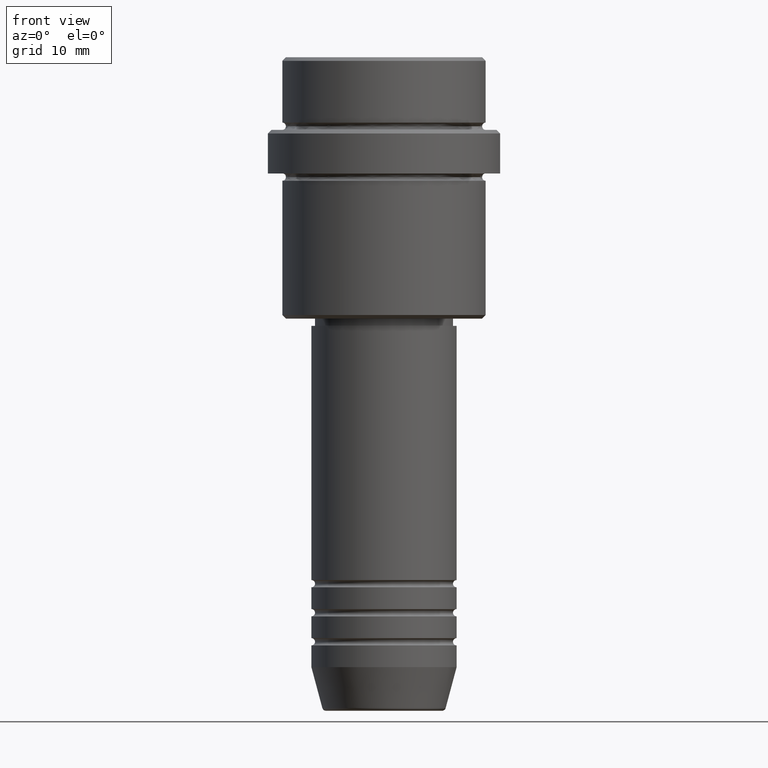
[diagram: clean part render]
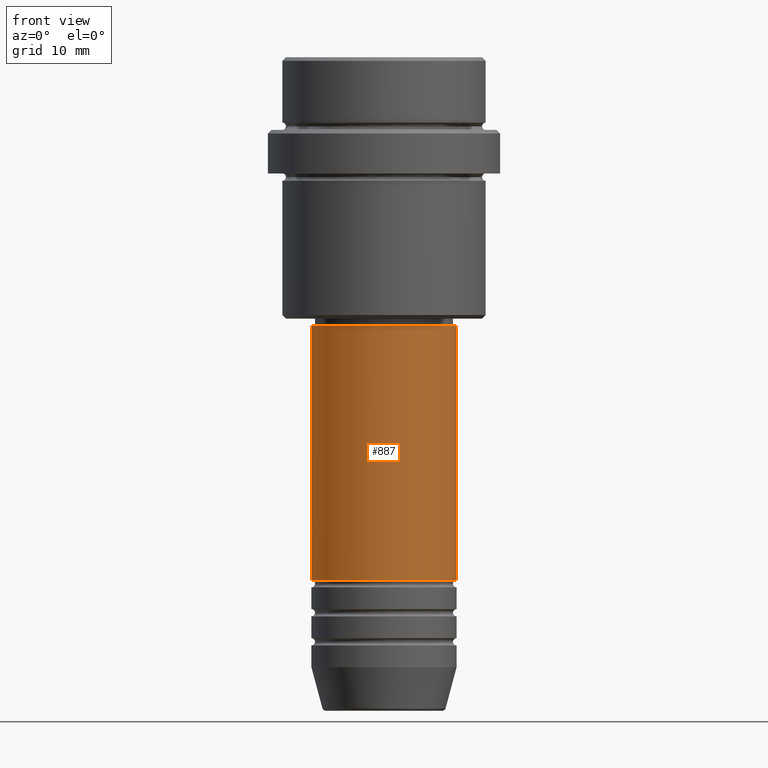
[diagram: same view with one face highlighted and labeled with its STEP entity id]
A machine part, front view. The second image highlights one B-rep face of the part: STEP entity #887.
In plain terms, the highlighted cylindrical surface (partial cylindrical patch) has radius 10 mm, axis along (-0, -0, 1).
Its self-contained STEP definition (entity closure, byte-faithful):
#62 = CARTESIAN_POINT ( 'NONE',  ( 10.00000000000000178, 0.000000000000000000, 0.000000000000000000 ) ) ;
#98 = AXIS2_PLACEMENT_3D ( 'NONE', #769, #1101, #774 ) ;
#111 = VERTEX_POINT ( 'NONE', #681 ) ;
#208 = EDGE_CURVE ( 'NONE', #111, #563, #984, .T. ) ;
#254 = EDGE_CURVE ( 'NONE', #563, #1037, #1038, .T. ) ;
#260 = DIRECTION ( 'NONE',  ( -0.000000000000000000, -0.000000000000000000, 1.000000000000000000 ) ) ;
#277 = CYLINDRICAL_SURFACE ( 'NONE', #1076, 10.00000000000000178 ) ;
#356 = VECTOR ( 'NONE', #566, 1000.000000000000000 ) ;
#362 = CARTESIAN_POINT ( 'NONE',  ( 0.000000000000000000, 0.000000000000000000, 0.000000000000000000 ) ) ;
#463 = CIRCLE ( 'NONE', #98, 10.00000000000000178 ) ;
#563 = VERTEX_POINT ( 'NONE', #1026 ) ;
#566 = DIRECTION ( 'NONE',  ( -0.000000000000000000, -0.000000000000000000, 1.000000000000000000 ) ) ;
#575 = DIRECTION ( 'NONE',  ( 1.000000000000000000, 0.000000000000000000, 0.000000000000000000 ) ) ;
#602 = FACE_OUTER_BOUND ( 'NONE', #840, .T. ) ;
#621 = ORIENTED_EDGE ( 'NONE', *, *, #208, .T. ) ;
#669 = AXIS2_PLACEMENT_3D ( 'NONE', #822, #1366, #575 ) ;
#681 = CARTESIAN_POINT ( 'NONE',  ( -10.00000000000000000, 1.224646799147353256E-15, -71.99999999999990052 ) ) ;
#713 = DIRECTION ( 'NONE',  ( -0.000000000000000000, -0.000000000000000000, 1.000000000000000000 ) ) ;
#769 = CARTESIAN_POINT ( 'NONE',  ( 0.000000000000000000, 0.000000000000000000, -37.00000000000000000 ) ) ;
#774 = DIRECTION ( 'NONE',  ( 1.000000000000000000, 0.000000000000000000, 0.000000000000000000 ) ) ;
#800 = LINE ( 'NONE', #1114, #356 ) ;
#822 = CARTESIAN_POINT ( 'NONE',  ( 0.000000000000000000, 0.000000000000000000, -71.99999999999990052 ) ) ;
#824 = DIRECTION ( 'NONE',  ( 1.000000000000000000, 0.000000000000000000, 0.000000000000000000 ) ) ;
#840 = EDGE_LOOP ( 'NONE', ( #1008, #621, #942, #1374 ) ) ;
#887 = ADVANCED_FACE ( 'NONE', ( #602 ), #277, .T. ) ;
#942 = ORIENTED_EDGE ( 'NONE', *, *, #254, .T. ) ;
#984 = CIRCLE ( 'NONE', #669, 10.00000000000000000 ) ;
#1008 = ORIENTED_EDGE ( 'NONE', *, *, #1103, .F. ) ;
#1026 = CARTESIAN_POINT ( 'NONE',  ( 10.00000000000000000, 0.000000000000000000, -71.99999999999990052 ) ) ;
#1032 = VERTEX_POINT ( 'NONE', #1108 ) ;
#1037 = VERTEX_POINT ( 'NONE', #1360 ) ;
#1038 = LINE ( 'NONE', #62, #1047 ) ;
#1047 = VECTOR ( 'NONE', #713, 1000.000000000000000 ) ;
#1076 = AXIS2_PLACEMENT_3D ( 'NONE', #362, #260, #824 ) ;
#1101 = DIRECTION ( 'NONE',  ( -0.000000000000000000, -0.000000000000000000, 1.000000000000000000 ) ) ;
#1103 = EDGE_CURVE ( 'NONE', #111, #1032, #800, .T. ) ;
#1108 = CARTESIAN_POINT ( 'NONE',  ( -10.00000000000000178, 1.224646799147353454E-15, -37.00000000000000000 ) ) ;
#1114 = CARTESIAN_POINT ( 'NONE',  ( -10.00000000000000178, 1.224646799147353454E-15, 0.000000000000000000 ) ) ;
#1293 = EDGE_CURVE ( 'NONE', #1032, #1037, #463, .T. ) ;
#1360 = CARTESIAN_POINT ( 'NONE',  ( 10.00000000000000178, 0.000000000000000000, -37.00000000000000000 ) ) ;
#1366 = DIRECTION ( 'NONE',  ( -0.000000000000000000, -0.000000000000000000, 1.000000000000000000 ) ) ;
#1374 = ORIENTED_EDGE ( 'NONE', *, *, #1293, .F. ) ;